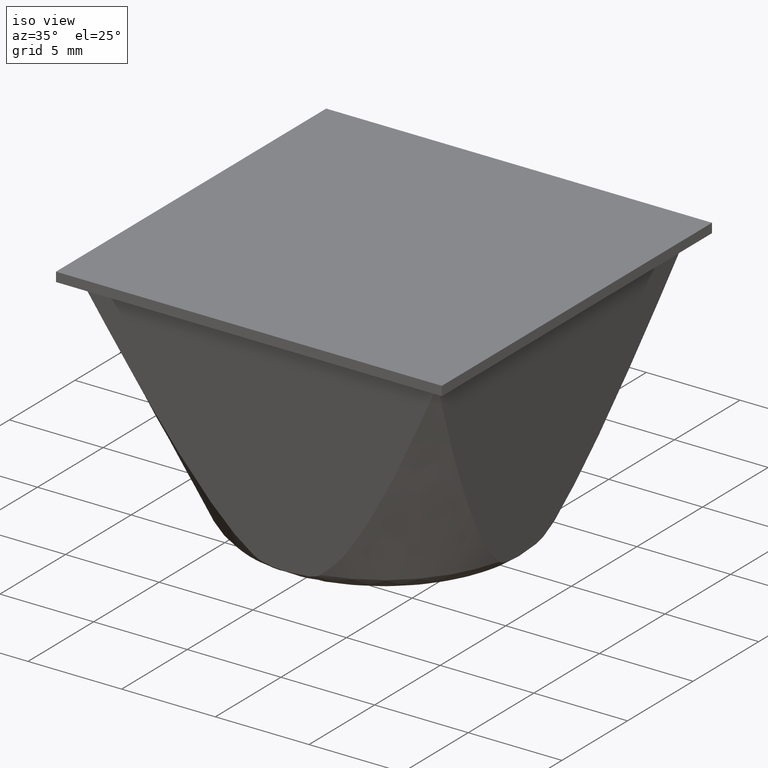
[diagram: clean part render]
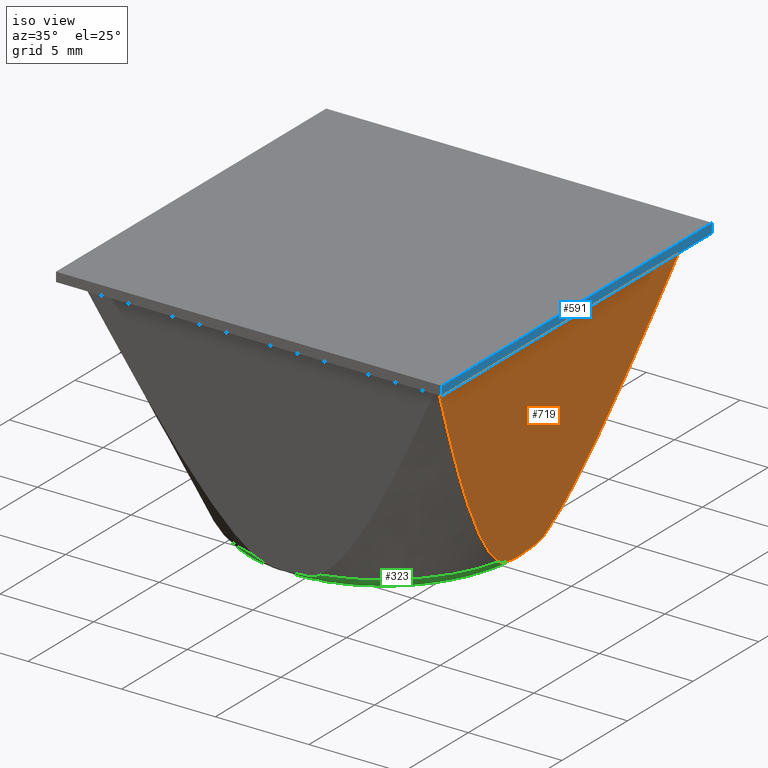
[diagram: same view with three faces highlighted in distinct colors, each labeled with its STEP entity id]
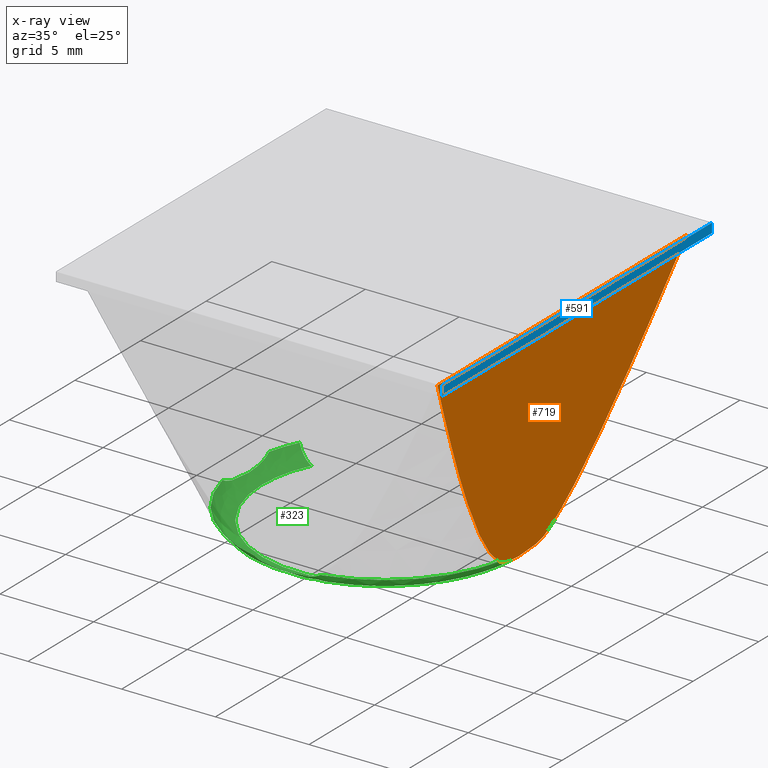
[diagram: x-ray of the same camera — body ghosted, the three highlighted faces saturated]
A machine part, iso view with three faces highlighted in distinct colors.
The next image is the same camera in x-ray (body ghosted, the three faces saturated) — at least one of them is partly hidden behind the body in this view.
Their STEP definitions:

[orange] entity #719 — the highlighted face is a freeform B-spline surface patch.
#105=CARTESIAN_POINT('',(7.379723671231931,1.769771452936485,0.675315743465285));
#106=VERTEX_POINT('',#105);
#120=CARTESIAN_POINT('',(7.379723671228410,-1.769771452951155,0.675315743465285));
#121=VERTEX_POINT('',#120);
#122=CARTESIAN_POINT('',(7.379723671231925,1.769771452936486,0.675315743465283));
#123=CARTESIAN_POINT('',(7.375629430709468,1.738436735764247,0.652096152280455));
#124=CARTESIAN_POINT('',(7.371991308677013,1.705979005489993,0.631463337522553));
#125=CARTESIAN_POINT('',(7.365332075128291,1.639544398252725,0.593696948430993));
#126=CARTESIAN_POINT('',(7.362314963490738,1.605557673155305,0.576586058536091));
#127=CARTESIAN_POINT('',(7.353962767605288,1.501876141888868,0.529218403193918));
#128=CARTESIAN_POINT('',(7.349315759435334,1.430487217924478,0.502863910987853));
#129=CARTESIAN_POINT('',(7.341218656835542,1.284762438789015,0.456942961518095));
#130=CARTESIAN_POINT('',(7.337767935953684,1.210091445864442,0.437372951468573));
#131=CARTESIAN_POINT('',(7.331827493168500,1.060288057306915,0.403683027251325));
#132=CARTESIAN_POINT('',(7.329335543574211,0.985180736689516,0.389550479220666));
#133=CARTESIAN_POINT('',(7.322934124792561,0.759396838532355,0.353246230289171));
#134=CARTESIAN_POINT('',(7.320078166466407,0.608267318582288,0.337049286213593));
#135=CARTESIAN_POINT('',(7.316320540333664,0.305168058527841,0.315738730043519));
#136=CARTESIAN_POINT('',(7.315432653400795,0.153192393527585,0.310703273165357));
#137=CARTESIAN_POINT('',(7.315427685793519,-0.075341570261567,0.310675100465312));
#138=CARTESIAN_POINT('',(7.315650985814355,-0.151616274861943,0.311941497778075));
#139=CARTESIAN_POINT('',(7.316565811595469,-0.304366991237397,0.317129732452182));
#140=CARTESIAN_POINT('',(7.317258697513537,-0.380945851801463,0.321059283651501));
#141=CARTESIAN_POINT('',(7.320101967547486,-0.609978492193262,0.337184268848172));
#142=CARTESIAN_POINT('',(7.322986626539809,-0.761859978045776,0.353543982485421));
#143=CARTESIAN_POINT('',(7.329423273122998,-0.987961156143045,0.390048018201717));
#144=CARTESIAN_POINT('',(7.331925569069764,-1.063037182655416,0.404239243311384));
#145=CARTESIAN_POINT('',(7.337871640038619,-1.212421180795681,0.437961086543482));
#146=CARTESIAN_POINT('',(7.341318171493754,-1.286747027876910,0.457507337174071));
#147=CARTESIAN_POINT('',(7.349405142567666,-1.431897671743318,0.503370827906922));
#148=CARTESIAN_POINT('',(7.354044144252980,-1.502998937716501,0.529679913083488));
#149=CARTESIAN_POINT('',(7.362375557493325,-1.606252528798740,0.576929704191649));
#150=CARTESIAN_POINT('',(7.365384253671762,-1.640097225690853,0.593992867647593));
#151=CARTESIAN_POINT('',(7.372021885526973,-1.706251366851468,0.631636747450936));
#152=CARTESIAN_POINT('',(7.375646908144014,-1.738570496951393,0.652195271734433));
#153=CARTESIAN_POINT('',(7.379723671228410,-1.769771452951155,0.675315743465285));
#154=B_SPLINE_CURVE_WITH_KNOTS('',3,(#122,#123,#124,#125,#126,#127,#128,#129,#130,#131,#132,#133,#134,#135,#136,#137,#138,#139,#140,#141,#142,#143,#144,#145,#146,#147,#148,#149,#150,#151,#152,#153),.UNSPECIFIED.,.F.,.U.,(4,2,2,2,2,2,2,2,2,2,2,2,2,2,2,4),(0.0,0.031250000000000,0.062500000000000,0.125000000000000,0.187500000000000,0.250000000000000,0.375000000000000,0.500000000000000,0.562500000000000,0.625000000000000,0.750000000000000,0.812500000000000,0.875000000000000,0.937500000000000,0.968750000000000,1.0),.UNSPECIFIED.);
#155=EDGE_CURVE('',#106,#121,#154,.T.);
#470=CARTESIAN_POINT('',(9.499999999999730,-9.500000000000000,12.699999999999999));
#471=VERTEX_POINT('',#470);
#477=CARTESIAN_POINT('',(9.500000000000000,9.499999999999730,12.699999999999999));
#478=VERTEX_POINT('',#477);
#479=CARTESIAN_POINT('',(9.500000000000000,9.499999999999730,12.699999999999999));
#480=CARTESIAN_POINT('',(9.499999999999730,-9.500000000000000,12.699999999999999));
#481=QUASI_UNIFORM_CURVE('',1,(#479,#480),.UNSPECIFIED.,.F.,.U.);
#482=EDGE_CURVE('',#478,#471,#481,.T.);
#656=CARTESIAN_POINT('',(9.609119280099217,-10.449049963174300,13.318846171930799));
#657=CARTESIAN_POINT('',(7.206309974296212,-10.449049963174300,-0.308162175482180));
#658=CARTESIAN_POINT('',(9.609119280099217,10.449050472793751,13.318846171930799));
#659=CARTESIAN_POINT('',(7.206309974296212,10.449050472793751,-0.308162175482180));
#660=B_SPLINE_SURFACE_WITH_KNOTS('',1,1,((#656,#658),(#657,#659)),.UNSPECIFIED.,.F.,.F.,.U.,(2,2),(2,2),(0.0,13.837226928128210),(0.0,20.898100435968050),.UNSPECIFIED.);
#661=ORIENTED_EDGE('',*,*,#482,.T.);
#662=CARTESIAN_POINT('',(7.379723671228410,-1.769771452951155,0.675315743465285));
#663=CARTESIAN_POINT('',(7.395762308301723,-1.892520996753407,0.766275371723511));
#664=CARTESIAN_POINT('',(7.412617569365291,-2.010301331829000,0.861866304660361));
#665=CARTESIAN_POINT('',(7.447544818038427,-2.238458143879920,1.059948569479108));
#666=CARTESIAN_POINT('',(7.465619413478673,-2.348818752040421,1.162454691103274));
#667=CARTESIAN_POINT('',(7.521261962972337,-2.671267312749730,1.478019261537683));
#668=CARTESIAN_POINT('',(7.560227003233445,-2.874853907232900,1.699000979734400));
#669=CARTESIAN_POINT('',(7.640572816093143,-3.267327211912445,2.154664714627788));
#670=CARTESIAN_POINT('',(7.681992271785582,-3.456225876795317,2.389566114045120));
#671=CARTESIAN_POINT('',(7.766434739366098,-3.823232583458610,2.868463131722237));
#672=CARTESIAN_POINT('',(7.809275703912358,-4.000515711744029,3.111426308231160));
#673=CARTESIAN_POINT('',(7.895840892961166,-4.346216706022677,3.602361877239753));
#674=CARTESIAN_POINT('',(7.939567803704024,-4.514607610276431,3.850349504164766));
#675=CARTESIAN_POINT('',(8.027685209614809,-4.844729035349317,4.350088132194331));
#676=CARTESIAN_POINT('',(8.072077003397613,-5.006446521997301,4.601846498109574));
#677=CARTESIAN_POINT('',(8.206024657674323,-5.483847694201186,5.361501373149732));
#678=CARTESIAN_POINT('',(8.296340786329985,-5.791900583615669,5.873709577156753));
#679=CARTESIAN_POINT('',(8.478275395911195,-6.394934679088938,6.905511991713319));
#680=CARTESIAN_POINT('',(8.569901927782457,-6.689835077968755,7.425151861443587));
#681=CARTESIAN_POINT('',(8.754061150005121,-7.270540781416059,8.469570680873234));
#682=CARTESIAN_POINT('',(8.846597199239636,-7.556312372941807,8.994368679744786));
#683=CARTESIAN_POINT('',(9.125194679728098,-8.403697234394333,10.574373461237730));
#684=CARTESIAN_POINT('',(9.312225006589777,-8.955585718729864,11.635075123749280));
#685=CARTESIAN_POINT('',(9.499999999999730,-9.500000000000000,12.699999999999999));
#686=B_SPLINE_CURVE_WITH_KNOTS('',3,(#662,#663,#664,#665,#666,#667,#668,#669,#670,#671,#672,#673,#674,#675,#676,#677,#678,#679,#680,#681,#682,#683,#684,#685),.UNSPECIFIED.,.F.,.U.,(4,2,2,2,2,2,2,2,2,2,2,4),(0.0,0.031250000000000,0.062500000000000,0.125000000000000,0.187500000000000,0.250000000000000,0.312500000000000,0.375000000000000,0.500000000000000,0.625000000000000,0.750000000000000,1.0),.UNSPECIFIED.);
#687=EDGE_CURVE('',#121,#471,#686,.T.);
#688=ORIENTED_EDGE('',*,*,#687,.F.);
#689=ORIENTED_EDGE('',*,*,#155,.F.);
#690=CARTESIAN_POINT('',(9.500000000000000,9.499999999999730,12.699999999999999));
#691=CARTESIAN_POINT('',(9.312114196700135,8.955264448293349,11.634446689654460));
#692=CARTESIAN_POINT('',(9.124959800327760,8.403006716575206,10.573041394002390));
#693=CARTESIAN_POINT('',(8.846143634738546,7.554920823071292,8.991796387708325));
#694=CARTESIAN_POINT('',(8.753529186975410,7.268890516965281,8.466553768699278));
#695=CARTESIAN_POINT('',(8.569198695100040,6.687590241124990,7.421163630829392));
#696=CARTESIAN_POINT('',(8.477479309869585,6.392354633237326,6.900997163546091));
#697=CARTESIAN_POINT('',(8.295339622910067,5.788522947960456,5.868031697415161));
#698=CARTESIAN_POINT('',(8.204911278115139,5.480009589762156,5.355187084075612));
#699=CARTESIAN_POINT('',(8.070775643783748,5.001741963214096,4.594466121198978));
#700=CARTESIAN_POINT('',(8.026317895449102,4.839705814503723,4.342333708443507));
#701=CARTESIAN_POINT('',(7.938061007482396,4.508860032949758,3.841804038388380));
#702=CARTESIAN_POINT('',(7.894223727528781,4.339915552355201,3.593190476582577));
#703=CARTESIAN_POINT('',(7.807599654647293,3.993659220290334,3.101920960773674));
#704=CARTESIAN_POINT('',(7.764878525820605,3.816643165533002,2.859637406383319));
#705=CARTESIAN_POINT('',(7.681053884499858,3.451967916293576,2.384244255442043));
#706=CARTESIAN_POINT('',(7.639944367412809,3.264348229153791,2.151100605153030));
#707=CARTESIAN_POINT('',(7.560042688044911,2.873861771559894,1.697955676386076));
#708=CARTESIAN_POINT('',(7.521235430436911,2.671094321119305,1.477868788056130));
#709=CARTESIAN_POINT('',(7.465703602393350,2.349316226163073,1.162932150151024));
#710=CARTESIAN_POINT('',(7.447644835165666,2.239083956712322,1.060515794778447));
#711=CARTESIAN_POINT('',(7.412702778694737,2.010885336385289,0.862349550767678));
#712=CARTESIAN_POINT('',(7.395816704390371,1.892937309875616,0.766583867263401));
#713=CARTESIAN_POINT('',(7.379723671231931,1.769771452936485,0.675315743465285));
#714=B_SPLINE_CURVE_WITH_KNOTS('',3,(#690,#691,#692,#693,#694,#695,#696,#697,#698,#699,#700,#701,#702,#703,#704,#705,#706,#707,#708,#709,#710,#711,#712,#713),.UNSPECIFIED.,.F.,.U.,(4,2,2,2,2,2,2,2,2,2,2,4),(0.0,0.250000000000000,0.375000000000000,0.500000000000000,0.625000000000000,0.687500000000000,0.750000000000000,0.812500000000000,0.875000000000000,0.937500000000000,0.968750000000000,1.0),.UNSPECIFIED.);
#715=EDGE_CURVE('',#478,#106,#714,.T.);
#716=ORIENTED_EDGE('',*,*,#715,.F.);
#717=EDGE_LOOP('',(#661,#688,#689,#716));
#718=FACE_OUTER_BOUND('',#717,.T.);
#719=ADVANCED_FACE('',(#718),#660,.T.);

[blue] entity #591 — the highlighted face is a freeform B-spline surface patch.
#431=CARTESIAN_POINT('',(10.300000000000001,10.300000000000001,12.699999999999999));
#432=VERTEX_POINT('',#431);
#433=CARTESIAN_POINT('',(10.300000000000001,-10.300000000000001,12.699999999999999));
#434=VERTEX_POINT('',#433);
#435=CARTESIAN_POINT('',(10.300000000000001,10.300000000000001,12.699999999999999));
#436=CARTESIAN_POINT('',(10.300000000000001,-10.300000000000001,12.699999999999999));
#437=QUASI_UNIFORM_CURVE('',1,(#435,#436),.UNSPECIFIED.,.F.,.U.);
#438=EDGE_CURVE('',#432,#434,#437,.T.);
#497=CARTESIAN_POINT('',(10.300000000000001,10.300000000000001,13.199999999999999));
#498=VERTEX_POINT('',#497);
#499=CARTESIAN_POINT('',(10.300000000000001,-10.300000000000001,13.199999999999999));
#500=VERTEX_POINT('',#499);
#501=CARTESIAN_POINT('',(10.300000000000001,10.300000000000001,13.199999999999999));
#502=CARTESIAN_POINT('',(10.300000000000001,-10.300000000000001,13.199999999999999));
#503=QUASI_UNIFORM_CURVE('',1,(#501,#502),.UNSPECIFIED.,.F.,.U.);
#504=EDGE_CURVE('',#498,#500,#503,.T.);
#540=CARTESIAN_POINT('',(10.300000000000001,10.300000000000001,13.199999999999999));
#541=CARTESIAN_POINT('',(10.300000000000001,10.300000000000001,12.699999999999999));
#542=QUASI_UNIFORM_CURVE('',1,(#540,#541),.UNSPECIFIED.,.F.,.U.);
#543=EDGE_CURVE('',#498,#432,#542,.T.);
#570=CARTESIAN_POINT('',(10.300000000000001,-10.300000000000001,13.199999999999999));
#571=CARTESIAN_POINT('',(10.300000000000001,-10.300000000000001,12.699999999999999));
#572=QUASI_UNIFORM_CURVE('',1,(#570,#571),.UNSPECIFIED.,.F.,.U.);
#573=EDGE_CURVE('',#500,#434,#572,.T.);
#580=CARTESIAN_POINT('',(10.300000000000001,-11.328970153451269,13.224974810829689));
#581=CARTESIAN_POINT('',(10.300000000000001,-11.328970153451269,12.675024809190701));
#582=CARTESIAN_POINT('',(10.300000000000001,11.328970521807969,13.224974810829689));
#583=CARTESIAN_POINT('',(10.300000000000001,11.328970521807969,12.675024809190701));
#584=B_SPLINE_SURFACE_WITH_KNOTS('',1,1,((#580,#582),(#581,#583)),.UNSPECIFIED.,.F.,.F.,.U.,(2,2),(2,2),(0.041708648617193,0.958291984682158),(0.0,22.657940675259240),.UNSPECIFIED.);
#585=ORIENTED_EDGE('',*,*,#438,.F.);
#586=ORIENTED_EDGE('',*,*,#543,.F.);
#587=ORIENTED_EDGE('',*,*,#504,.T.);
#588=ORIENTED_EDGE('',*,*,#573,.T.);
#589=EDGE_LOOP('',(#585,#586,#587,#588));
#590=FACE_OUTER_BOUND('',#589,.T.);
#591=ADVANCED_FACE('',(#590),#584,.T.);

[green] entity #323 — the highlighted face is a freeform B-spline surface patch.
#44=CARTESIAN_POINT('',(3.328638617341546,6.848975217575174,0.732652266162198));
#45=CARTESIAN_POINT('',(10.177613834916718,3.520336600233628,0.732652266162198));
#46=CARTESIAN_POINT('',(6.848975217575174,-3.328638617341545,0.732652266162198));
#47=CARTESIAN_POINT('',(3.520336600233628,-10.177613834916718,0.732652266162198));
#48=CARTESIAN_POINT('',(-3.328638617341545,-6.848975217575174,0.732652266162198));
#49=CARTESIAN_POINT('',(-10.177613834916716,-3.520336600233634,0.732652266162198));
#50=CARTESIAN_POINT('',(-6.848975217575174,3.328638617341549,0.732652266162198));
#51=CARTESIAN_POINT('',(3.185337349119502,6.554119888556691,-0.042657869509506));
#52=CARTESIAN_POINT('',(9.739457237676191,3.368782539437189,-0.042657869509506));
#53=CARTESIAN_POINT('',(6.554119888556691,-3.185337349119502,-0.042657869509506));
#54=CARTESIAN_POINT('',(3.368782539437189,-9.739457237676191,-0.042657869509506));
#55=CARTESIAN_POINT('',(-3.185337349119502,-6.554119888556691,-0.042657869509506));
#56=CARTESIAN_POINT('',(-9.739457237676190,-3.368782539437193,-0.042657869509506));
#57=CARTESIAN_POINT('',(-6.554119888556690,3.185337349119503,-0.042657869509506));
#58=CARTESIAN_POINT('',(2.817895786019126,5.798075616742207,0.001664605182020));
#59=CARTESIAN_POINT('',(8.615971402761332,2.980179830723081,0.001664605182020));
#60=CARTESIAN_POINT('',(5.798075616742207,-2.817895786019126,0.001664605182020));
#61=CARTESIAN_POINT('',(2.980179830723081,-8.615971402761330,0.001664605182020));
#62=CARTESIAN_POINT('',(-2.817895786019125,-5.798075616742208,0.001664605182020));
#63=CARTESIAN_POINT('',(-8.615971402761330,-2.980179830723086,0.001664605182020));
#64=CARTESIAN_POINT('',(-5.798075616742206,2.817895786019129,0.001664605182020));
#72=(BOUNDED_SURFACE()B_SPLINE_SURFACE(2,2,((#44,#51,#58),(#45,#52,#59),(#46,#53,#60),(#47,#54,#61),(#48,#55,#62),(#49,#56,#63),(#50,#57,#64)),.UNSPECIFIED.,.F.,.F.,.U.)B_SPLINE_SURFACE_WITH_KNOTS((3,2,2,3),(3,3),(0.0,12.616952896533130,25.233905793066249,37.850858689599377),(0.0,1.515679160083022),.UNSPECIFIED.)GEOMETRIC_REPRESENTATION_ITEM()RATIONAL_B_SPLINE_SURFACE(((0.923235105304038,0.754360088458196,0.919674783884423),(0.652825803589962,0.533413134005274,0.650308276170948),(0.923235105304038,0.754360088458196,0.919674783884423),(0.652825803589962,0.533413134005274,0.650308276170948),(0.923235105304038,0.754360088458196,0.919674783884423),(0.652825803589962,0.533413134005274,0.650308276170948),(0.923235105304038,0.754360088458196,0.919674783884423)))REPRESENTATION_ITEM('')SURFACE());
#73=CARTESIAN_POINT('',(2.845514729197831,5.854904091922935,2.605872E-016));
#74=VERTEX_POINT('',#73);
#75=CARTESIAN_POINT('',(6.509750839372390,0.0,0.0));
#76=VERTEX_POINT('',#75);
#77=CARTESIAN_POINT('',(2.845514729197830,5.854904091922935,2.605872E-016));
#78=CARTESIAN_POINT('',(6.509750839372390,4.074065727412910,0.0));
#79=CARTESIAN_POINT('',(6.509750839372390,0.0,0.0));
#87=(BOUNDED_CURVE()B_SPLINE_CURVE(2,(#77,#78,#79),.UNSPECIFIED.,.F.,.U.)B_SPLINE_CURVE_WITH_KNOTS((3,3),(0.324283295448741,0.500000000000000),.UNSPECIFIED.)CURVE()GEOMETRIC_REPRESENTATION_ITEM()RATIONAL_B_SPLINE_CURVE((0.877661399759537,0.794135075218757,1.0))REPRESENTATION_ITEM(''));
#88=EDGE_CURVE('',#74,#76,#87,.T.);
#89=ORIENTED_EDGE('',*,*,#88,.F.);
#90=CARTESIAN_POINT('',(3.317256907468267,6.825556319390302,0.675315743457834));
#91=VERTEX_POINT('',#90);
#92=CARTESIAN_POINT('',(3.317256907468267,6.825556319390302,0.675315743457834));
#93=CARTESIAN_POINT('',(3.173743279965361,6.530264041937033,8.639886E-010));
#94=CARTESIAN_POINT('',(2.845514729197831,5.854904091922935,2.605872E-016));
#102=(BOUNDED_CURVE()B_SPLINE_CURVE(2,(#92,#93,#94),.UNSPECIFIED.,.F.,.U.)B_SPLINE_CURVE_WITH_KNOTS((3,3),(-1.660356673770125,-0.354940080941388),.UNSPECIFIED.)CURVE()GEOMETRIC_REPRESENTATION_ITEM()RATIONAL_B_SPLINE_CURVE((0.908585990121206,0.768847520690984,0.905349034737030))REPRESENTATION_ITEM(''));
#103=EDGE_CURVE('',#91,#74,#102,.T.);
#104=ORIENTED_EDGE('',*,*,#103,.F.);
#105=CARTESIAN_POINT('',(7.379723671231931,1.769771452936485,0.675315743465285));
#106=VERTEX_POINT('',#105);
#107=CARTESIAN_POINT('',(7.379723671231935,1.769771452936486,0.675315743465285));
#108=CARTESIAN_POINT('',(6.543264853436612,5.257699189284913,0.675315743465285));
#109=CARTESIAN_POINT('',(3.317256907468268,6.825556319390302,0.675315743457834));
#117=(BOUNDED_CURVE()B_SPLINE_CURVE(2,(#107,#108,#109),.UNSPECIFIED.,.F.,.U.)B_SPLINE_CURVE_WITH_KNOTS((3,3),(0.0,0.797806636239092),.UNSPECIFIED.)CURVE()GEOMETRIC_REPRESENTATION_ITEM()RATIONAL_B_SPLINE_CURVE((1.0,0.882331522374842,0.952416429400688))REPRESENTATION_ITEM(''));
#118=EDGE_CURVE('',#106,#91,#117,.T.);
#119=ORIENTED_EDGE('',*,*,#118,.F.);
#120=CARTESIAN_POINT('',(7.379723671228410,-1.769771452951155,0.675315743465285));
#121=VERTEX_POINT('',#120);
#122=CARTESIAN_POINT('',(7.379723671231925,1.769771452936486,0.675315743465283));
#123=CARTESIAN_POINT('',(7.375629430709468,1.738436735764247,0.652096152280455));
#124=CARTESIAN_POINT('',(7.371991308677013,1.705979005489993,0.631463337522553));
#125=CARTESIAN_POINT('',(7.365332075128291,1.639544398252725,0.593696948430993));
#126=CARTESIAN_POINT('',(7.362314963490738,1.605557673155305,0.576586058536091));
#127=CARTESIAN_POINT('',(7.353962767605288,1.501876141888868,0.529218403193918));
#128=CARTESIAN_POINT('',(7.349315759435334,1.430487217924478,0.502863910987853));
#129=CARTESIAN_POINT('',(7.341218656835542,1.284762438789015,0.456942961518095));
#130=CARTESIAN_POINT('',(7.337767935953684,1.210091445864442,0.437372951468573));
#131=CARTESIAN_POINT('',(7.331827493168500,1.060288057306915,0.403683027251325));
#132=CARTESIAN_POINT('',(7.329335543574211,0.985180736689516,0.389550479220666));
#133=CARTESIAN_POINT('',(7.322934124792561,0.759396838532355,0.353246230289171));
#134=CARTESIAN_POINT('',(7.320078166466407,0.608267318582288,0.337049286213593));
#135=CARTESIAN_POINT('',(7.316320540333664,0.305168058527841,0.315738730043519));
#136=CARTESIAN_POINT('',(7.315432653400795,0.153192393527585,0.310703273165357));
#137=CARTESIAN_POINT('',(7.315427685793519,-0.075341570261567,0.310675100465312));
#138=CARTESIAN_POINT('',(7.315650985814355,-0.151616274861943,0.311941497778075));
#139=CARTESIAN_POINT('',(7.316565811595469,-0.304366991237397,0.317129732452182));
#140=CARTESIAN_POINT('',(7.317258697513537,-0.380945851801463,0.321059283651501));
#141=CARTESIAN_POINT('',(7.320101967547486,-0.609978492193262,0.337184268848172));
#142=CARTESIAN_POINT('',(7.322986626539809,-0.761859978045776,0.353543982485421));
#143=CARTESIAN_POINT('',(7.329423273122998,-0.987961156143045,0.390048018201717));
#144=CARTESIAN_POINT('',(7.331925569069764,-1.063037182655416,0.404239243311384));
#145=CARTESIAN_POINT('',(7.337871640038619,-1.212421180795681,0.437961086543482));
#146=CARTESIAN_POINT('',(7.341318171493754,-1.286747027876910,0.457507337174071));
#147=CARTESIAN_POINT('',(7.349405142567666,-1.431897671743318,0.503370827906922));
#148=CARTESIAN_POINT('',(7.354044144252980,-1.502998937716501,0.529679913083488));
#149=CARTESIAN_POINT('',(7.362375557493325,-1.606252528798740,0.576929704191649));
#150=CARTESIAN_POINT('',(7.365384253671762,-1.640097225690853,0.593992867647593));
#151=CARTESIAN_POINT('',(7.372021885526973,-1.706251366851468,0.631636747450936));
#152=CARTESIAN_POINT('',(7.375646908144014,-1.738570496951393,0.652195271734433));
#153=CARTESIAN_POINT('',(7.379723671228410,-1.769771452951155,0.675315743465285));
#154=B_SPLINE_CURVE_WITH_KNOTS('',3,(#122,#123,#124,#125,#126,#127,#128,#129,#130,#131,#132,#133,#134,#135,#136,#137,#138,#139,#140,#141,#142,#143,#144,#145,#146,#147,#148,#149,#150,#151,#152,#153),.UNSPECIFIED.,.F.,.U.,(4,2,2,2,2,2,2,2,2,2,2,2,2,2,2,4),(0.0,0.031250000000000,0.062500000000000,0.125000000000000,0.187500000000000,0.250000000000000,0.375000000000000,0.500000000000000,0.562500000000000,0.625000000000000,0.750000000000000,0.812500000000000,0.875000000000000,0.937500000000000,0.968750000000000,1.0),.UNSPECIFIED.);
#155=EDGE_CURVE('',#106,#121,#154,.T.);
#156=ORIENTED_EDGE('',*,*,#155,.T.);
#157=CARTESIAN_POINT('',(1.769771452936490,-7.379723671231931,0.675315743465284));
#158=VERTEX_POINT('',#157);
#159=CARTESIAN_POINT('',(1.769771452936489,-7.379723671231934,0.675315743465285));
#160=CARTESIAN_POINT('',(6.294600049258126,-6.294600049270636,0.675315743465285));
#161=CARTESIAN_POINT('',(7.379723671228417,-1.769771452951157,0.675315743465285));
#169=(BOUNDED_CURVE()B_SPLINE_CURVE(2,(#159,#160,#161),.UNSPECIFIED.,.F.,.U.)CURVE()GEOMETRIC_REPRESENTATION_ITEM()QUASI_UNIFORM_CURVE()RATIONAL_B_SPLINE_CURVE((1.0,0.852510029021742,1.0))REPRESENTATION_ITEM(''));
#170=EDGE_CURVE('',#158,#121,#169,.T.);
#171=ORIENTED_EDGE('',*,*,#170,.F.);
#172=CARTESIAN_POINT('',(-1.769771452951425,-7.379723671228351,0.675315743465285));
#173=VERTEX_POINT('',#172);
#174=CARTESIAN_POINT('',(1.769771452936490,-7.379723671231926,0.675315743465286));
#175=CARTESIAN_POINT('',(1.738436735764249,-7.375629430709468,0.652096152280456));
#176=CARTESIAN_POINT('',(1.705979005489993,-7.371991308677012,0.631463337522551));
#177=CARTESIAN_POINT('',(1.639544398252721,-7.365332075128294,0.593696948430989));
#178=CARTESIAN_POINT('',(1.605557673155297,-7.362314963490737,0.576586058536086));
#179=CARTESIAN_POINT('',(1.501876141888853,-7.353962767605284,0.529218403193912));
#180=CARTESIAN_POINT('',(1.430487217924457,-7.349315759435334,0.502863910987847));
#181=CARTESIAN_POINT('',(1.284762438788984,-7.341218656835541,0.456942961518088));
#182=CARTESIAN_POINT('',(1.210091445864405,-7.337767935953681,0.437372951468564));
#183=CARTESIAN_POINT('',(1.060288057306869,-7.331827493168500,0.403683027251316));
#184=CARTESIAN_POINT('',(0.985180736689464,-7.329335543574207,0.389550479220656));
#185=CARTESIAN_POINT('',(0.759396838532287,-7.322934124792560,0.353246230289162));
#186=CARTESIAN_POINT('',(0.608267318582211,-7.320078166466406,0.337049286213586));
#187=CARTESIAN_POINT('',(0.305168058527741,-7.316320540333668,0.315738730043515));
#188=CARTESIAN_POINT('',(0.153192393527476,-7.315432653400794,0.310703273165355));
#189=CARTESIAN_POINT('',(-0.075341570261693,-7.315427685793518,0.310675100465314));
#190=CARTESIAN_POINT('',(-0.151616274862074,-7.315650985814360,0.311941497778077));
#191=CARTESIAN_POINT('',(-0.304366991237538,-7.316565811595470,0.317129732452188));
#192=CARTESIAN_POINT('',(-0.380945851801610,-7.317258697513539,0.321059283651508));
#193=CARTESIAN_POINT('',(-0.609978492193424,-7.320101967547485,0.337184268848187));
#194=CARTESIAN_POINT('',(-0.761859978045947,-7.322986626539812,0.353543982485441));
#195=CARTESIAN_POINT('',(-0.987961156143230,-7.329423273123003,0.390048018201751));
#196=CARTESIAN_POINT('',(-1.063037182655606,-7.331925569069769,0.404239243311423));
#197=CARTESIAN_POINT('',(-1.212421180795880,-7.337871640038626,0.437961086543533));
#198=CARTESIAN_POINT('',(-1.286747027877113,-7.341318171493763,0.457507337174127));
#199=CARTESIAN_POINT('',(-1.431897671743524,-7.349405142567677,0.503370827906994));
#200=CARTESIAN_POINT('',(-1.502998937716709,-7.354044144252993,0.529679913083570));
#201=CARTESIAN_POINT('',(-1.606252528798948,-7.362375557493341,0.576929704191751));
#202=CARTESIAN_POINT('',(-1.640097225691059,-7.365384253671780,0.593992867647703));
#203=CARTESIAN_POINT('',(-1.706251366851671,-7.372021885526991,0.631636747451063));
#204=CARTESIAN_POINT('',(-1.738570496951596,-7.375646908144034,0.652195271734568));
#205=CARTESIAN_POINT('',(-1.769771452951425,-7.379723671228351,0.675315743465285));
#206=B_SPLINE_CURVE_WITH_KNOTS('',3,(#174,#175,#176,#177,#178,#179,#180,#181,#182,#183,#184,#185,#186,#187,#188,#189,#190,#191,#192,#193,#194,#195,#196,#197,#198,#199,#200,#201,#202,#203,#204,#205),.UNSPECIFIED.,.F.,.U.,(4,2,2,2,2,2,2,2,2,2,2,2,2,2,2,4),(0.0,0.031250000000000,0.062500000000000,0.125000000000000,0.187500000000000,0.250000000000000,0.375000000000000,0.500000000000000,0.562500000000000,0.625000000000000,0.750000000000000,0.812500000000000,0.875000000000000,0.937500000000000,0.968750000000000,1.0),.UNSPECIFIED.);
#207=EDGE_CURVE('',#158,#173,#206,.T.);
#208=ORIENTED_EDGE('',*,*,#207,.T.);
#209=CARTESIAN_POINT('',(-7.379723671231931,-1.769771452936490,0.675315743465284));
#210=VERTEX_POINT('',#209);
#211=CARTESIAN_POINT('',(-7.379723671231934,-1.769771452936490,0.675315743465285));
#212=CARTESIAN_POINT('',(-6.294600049270682,-6.294600049257940,0.675315743465285));
#213=CARTESIAN_POINT('',(-1.769771452951428,-7.379723671228352,0.675315743465285));
#221=(BOUNDED_CURVE()B_SPLINE_CURVE(2,(#211,#212,#213),.UNSPECIFIED.,.F.,.U.)CURVE()GEOMETRIC_REPRESENTATION_ITEM()QUASI_UNIFORM_CURVE()RATIONAL_B_SPLINE_CURVE((1.0,0.852510029021752,1.0))REPRESENTATION_ITEM(''));
#222=EDGE_CURVE('',#210,#173,#221,.T.);
#223=ORIENTED_EDGE('',*,*,#222,.F.);
#224=CARTESIAN_POINT('',(-7.379723671228320,1.769771452951565,0.675315743465285));
#225=VERTEX_POINT('',#224);
#226=CARTESIAN_POINT('',(-7.379723671231925,-1.769771452936491,0.675315743465284));
#227=CARTESIAN_POINT('',(-7.375629430709466,-1.738436735764247,0.652096152280453));
#228=CARTESIAN_POINT('',(-7.371991308677011,-1.705979005489990,0.631463337522549));
#229=CARTESIAN_POINT('',(-7.365332075128289,-1.639544398252716,0.593696948430986));
#230=CARTESIAN_POINT('',(-7.362314963490734,-1.605557673155290,0.576586058536085));
#231=CARTESIAN_POINT('',(-7.353962767605283,-1.501876141888843,0.529218403193910));
#232=CARTESIAN_POINT('',(-7.349315759435333,-1.430487217924446,0.502863910987839));
#233=CARTESIAN_POINT('',(-7.341218656835538,-1.284762438788967,0.456942961518079));
#234=CARTESIAN_POINT('',(-7.337767935953681,-1.210091445864384,0.437372951468558));
#235=CARTESIAN_POINT('',(-7.331827493168500,-1.060288057306842,0.403683027251311));
#236=CARTESIAN_POINT('',(-7.329335543574207,-0.985180736689435,0.389550479220651));
#237=CARTESIAN_POINT('',(-7.322934124792560,-0.759396838532250,0.353246230289158));
#238=CARTESIAN_POINT('',(-7.320078166466582,-0.608267318582091,0.337049286214593));
#239=CARTESIAN_POINT('',(-7.316320540333839,-0.305168058527614,0.315738730044494));
#240=CARTESIAN_POINT('',(-7.315432653400795,-0.153192393527416,0.310703273165354));
#241=CARTESIAN_POINT('',(-7.315427685793518,0.075341570261760,0.310675100465314));
#242=CARTESIAN_POINT('',(-7.315650985814358,0.151616274862143,0.311941497778078));
#243=CARTESIAN_POINT('',(-7.316565811595473,0.304366991237613,0.317129732452191));
#244=CARTESIAN_POINT('',(-7.317258697513540,0.380945851801687,0.321059283651513));
#245=CARTESIAN_POINT('',(-7.320101967547485,0.609978492193509,0.337184268848195));
#246=CARTESIAN_POINT('',(-7.322986626539813,0.761859978046038,0.353543982485452));
#247=CARTESIAN_POINT('',(-7.329423273123006,0.987961156143327,0.390048018201768));
#248=CARTESIAN_POINT('',(-7.331925569069772,1.063037182655705,0.404239243311444));
#249=CARTESIAN_POINT('',(-7.337871640038632,1.212421180795983,0.437961086543559));
#250=CARTESIAN_POINT('',(-7.341318171493768,1.286747027877217,0.457507337174156));
#251=CARTESIAN_POINT('',(-7.349405142567685,1.431897671743632,0.503370827907031));
#252=CARTESIAN_POINT('',(-7.354044144252999,1.502998937716817,0.529679913083611));
#253=CARTESIAN_POINT('',(-7.362375557493351,1.606252528799057,0.576929704191801));
#254=CARTESIAN_POINT('',(-7.365384253671792,1.640097225691166,0.593992867647761));
#255=CARTESIAN_POINT('',(-7.372021885527006,1.706251366851778,0.631636747451130));
#256=CARTESIAN_POINT('',(-7.375646908144048,1.738570496951702,0.652195271734637));
#257=CARTESIAN_POINT('',(-7.379723671228320,1.769771452951565,0.675315743465285));
#258=B_SPLINE_CURVE_WITH_KNOTS('',3,(#226,#227,#228,#229,#230,#231,#232,#233,#234,#235,#236,#237,#238,#239,#240,#241,#242,#243,#244,#245,#246,#247,#248,#249,#250,#251,#252,#253,#254,#255,#256,#257),.UNSPECIFIED.,.F.,.U.,(4,2,2,2,2,2,2,2,2,2,2,2,2,2,2,4),(0.0,0.031250000000000,0.062500000000000,0.125000000000000,0.187500000000000,0.250000000000000,0.375000000000000,0.500000000000000,0.562500000000000,0.625000000000000,0.750000000000000,0.812500000000000,0.875000000000000,0.937500000000000,0.968750000000000,1.0),.UNSPECIFIED.);
#259=EDGE_CURVE('',#210,#225,#258,.T.);
#260=ORIENTED_EDGE('',*,*,#259,.T.);
#261=CARTESIAN_POINT('',(-6.825556319391236,3.317256907468510,0.675315743459781));
#262=VERTEX_POINT('',#261);
#263=CARTESIAN_POINT('',(-6.825556319391236,3.317256907468510,0.675315743459781));
#264=CARTESIAN_POINT('',(-7.186929471953428,2.573698939572269,0.675315743465285));
#265=CARTESIAN_POINT('',(-7.379723671228319,1.769771452951567,0.675315743465285));
#273=(BOUNDED_CURVE()B_SPLINE_CURVE(2,(#263,#264,#265),.UNSPECIFIED.,.F.,.U.)B_SPLINE_CURVE_WITH_KNOTS((3,3),(0.797806636239151,1.0),.UNSPECIFIED.)CURVE()GEOMETRIC_REPRESENTATION_ITEM()RATIONAL_B_SPLINE_CURVE((0.952416429400700,0.970178506646919,1.0))REPRESENTATION_ITEM(''));
#274=EDGE_CURVE('',#262,#225,#273,.T.);
#275=ORIENTED_EDGE('',*,*,#274,.F.);
#276=CARTESIAN_POINT('',(-5.854904091930713,2.845514729201897,2.759159E-016));
#277=VERTEX_POINT('',#276);
#278=CARTESIAN_POINT('',(-6.825556319391236,3.317256907468510,0.675315743459781));
#279=CARTESIAN_POINT('',(-6.530264041944542,3.173743279969011,8.749683E-010));
#280=CARTESIAN_POINT('',(-5.854904091930713,2.845514729201897,2.759159E-016));
#288=(BOUNDED_CURVE()B_SPLINE_CURVE(2,(#278,#279,#280),.UNSPECIFIED.,.F.,.U.)B_SPLINE_CURVE_WITH_KNOTS((3,3),(-1.660356673774574,-0.354940080959348),.UNSPECIFIED.)CURVE()GEOMETRIC_REPRESENTATION_ITEM()RATIONAL_B_SPLINE_CURVE((0.908585990122158,0.768847520692442,0.905349034733274))REPRESENTATION_ITEM(''));
#289=EDGE_CURVE('',#262,#277,#288,.T.);
#290=ORIENTED_EDGE('',*,*,#289,.T.);
#291=CARTESIAN_POINT('',(-6.509750839372390,0.0,0.0));
#292=VERTEX_POINT('',#291);
#293=CARTESIAN_POINT('',(-6.509750839372390,0.0,0.0));
#294=CARTESIAN_POINT('',(-6.509750839372389,1.498108277101772,0.0));
#295=CARTESIAN_POINT('',(-5.854904091930713,2.845514729201897,2.759159E-016));
#303=(BOUNDED_CURVE()B_SPLINE_CURVE(2,(#293,#294,#295),.UNSPECIFIED.,.F.,.U.)B_SPLINE_CURVE_WITH_KNOTS((3,3),(0.0,0.074283295448753),.UNSPECIFIED.)CURVE()GEOMETRIC_REPRESENTATION_ITEM()RATIONAL_B_SPLINE_CURVE((1.0,0.912971705967776,0.877661399759525))REPRESENTATION_ITEM(''));
#304=EDGE_CURVE('',#292,#277,#303,.T.);
#305=ORIENTED_EDGE('',*,*,#304,.F.);
#306=CARTESIAN_POINT('',(6.509750839372390,0.0,0.0));
#307=CARTESIAN_POINT('',(6.509750839372389,-6.509750839372389,0.0));
#308=CARTESIAN_POINT('',(0.0,-6.509750839372390,0.0));
#309=CARTESIAN_POINT('',(-6.509750839372389,-6.509750839372389,0.0));
#310=CARTESIAN_POINT('',(-6.509750839372390,0.0,0.0));
#318=(BOUNDED_CURVE()B_SPLINE_CURVE(2,(#306,#307,#308,#309,#310),.UNSPECIFIED.,.F.,.U.)B_SPLINE_CURVE_WITH_KNOTS((3,2,3),(0.500000000000000,0.750000000000000,1.0),.UNSPECIFIED.)CURVE()GEOMETRIC_REPRESENTATION_ITEM()RATIONAL_B_SPLINE_CURVE((1.0,0.707106781186547,1.0,0.707106781186547,1.0))REPRESENTATION_ITEM(''));
#319=EDGE_CURVE('',#76,#292,#318,.T.);
#320=ORIENTED_EDGE('',*,*,#319,.F.);
#321=EDGE_LOOP('',(#89,#104,#119,#156,#171,#208,#223,#260,#275,#290,#305,#320));
#322=FACE_OUTER_BOUND('',#321,.T.);
#323=ADVANCED_FACE('',(#322),#72,.T.);